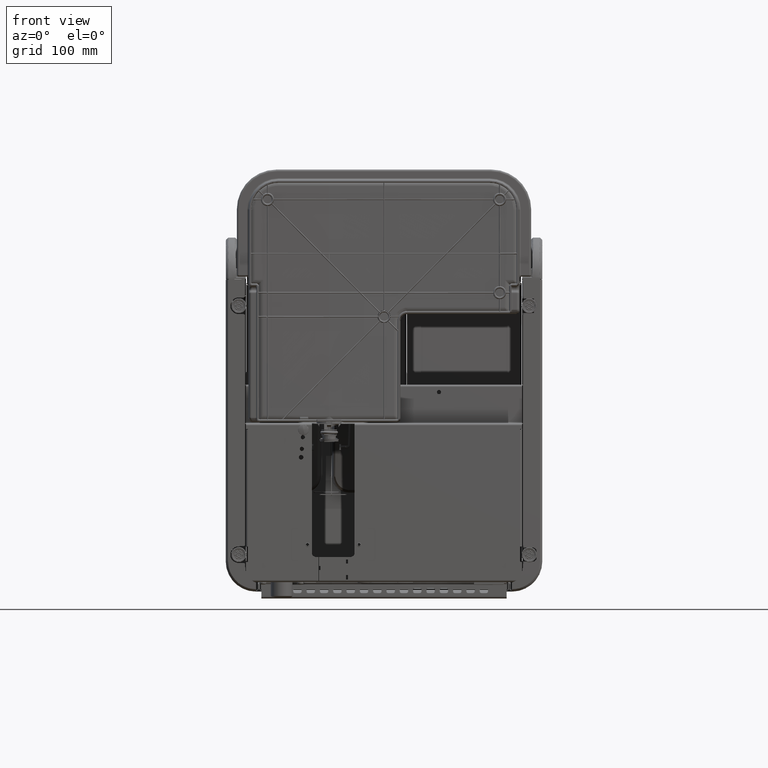
[diagram: clean part render]
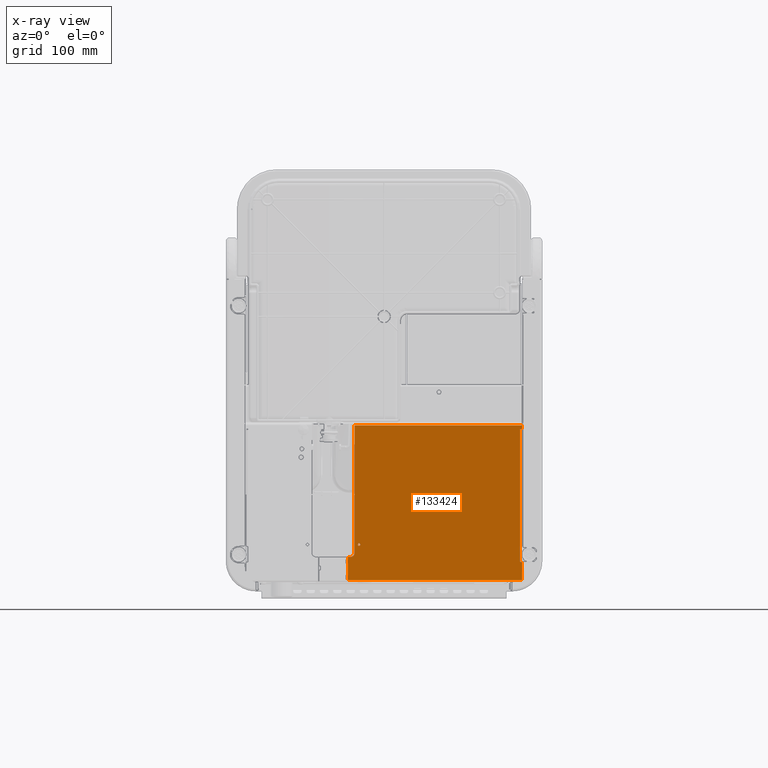
[diagram: x-ray — body ghosted, one internal face saturated and labeled with its STEP entity id]
A machine part, front view, then the same camera in x-ray: the body is ghosted and one INTERNAL B-rep face — a face not visible from any outside direction — is saturated and labeled: STEP entity #133424.
In plain terms, the highlighted planar face has unit normal (0, 1, 0).
Its self-contained STEP definition (entity closure, byte-faithful):
#2092=FACE_BOUND('',#32859,.T.);
#18592=CIRCLE('',#142537,1.);
#18637=CIRCLE('',#142623,5.);
#18685=CIRCLE('',#142686,0.249999999999995);
#18689=CIRCLE('',#142693,0.250000000000004);
#18690=CIRCLE('',#142694,1.);
#18691=CIRCLE('',#142695,1.621);
#26639=FACE_OUTER_BOUND('',#32858,.T.);
#32858=EDGE_LOOP('',(#115791,#115792,#115793,#115794,#115795,#115796,#115797,
#115798,#115799,#115800,#115801,#115802,#115803,#115804,#115805,#115806,
#115807,#115808));
#32859=EDGE_LOOP('',(#115809));
#41378=LINE('',#283409,#51403);
#41488=LINE('',#283732,#51513);
#41600=LINE('',#284009,#51625);
#41613=LINE('',#284055,#51638);
#41623=LINE('',#284076,#51648);
#41624=LINE('',#284077,#51649);
#41625=LINE('',#284079,#51650);
#41626=LINE('',#284080,#51651);
#41627=LINE('',#284083,#51652);
#41628=LINE('',#284085,#51653);
#41629=LINE('',#284088,#51654);
#41630=LINE('',#284090,#51655);
#41631=LINE('',#284091,#51656);
#51403=VECTOR('',#166721,10.);
#51513=VECTOR('',#166995,10.);
#51625=VECTOR('',#167217,10.);
#51638=VECTOR('',#167256,10.);
#51648=VECTOR('',#167274,10.);
#51649=VECTOR('',#167275,10.);
#51650=VECTOR('',#167276,10.);
#51651=VECTOR('',#167277,10.);
#51652=VECTOR('',#167280,10.);
#51653=VECTOR('',#167281,10.);
#51654=VECTOR('',#167284,10.);
#51655=VECTOR('',#167285,10.);
#51656=VECTOR('',#167286,10.);
#64988=VERTEX_POINT('',#283402);
#64989=VERTEX_POINT('',#283404);
#64990=VERTEX_POINT('',#283408);
#65119=VERTEX_POINT('',#283728);
#65121=VERTEX_POINT('',#283731);
#65124=VERTEX_POINT('',#283739);
#65231=VERTEX_POINT('',#284007);
#65245=VERTEX_POINT('',#284041);
#65246=VERTEX_POINT('',#284043);
#65250=VERTEX_POINT('',#284052);
#65251=VERTEX_POINT('',#284054);
#65257=VERTEX_POINT('',#284074);
#65258=VERTEX_POINT('',#284075);
#65259=VERTEX_POINT('',#284078);
#65260=VERTEX_POINT('',#284081);
#65261=VERTEX_POINT('',#284084);
#65262=VERTEX_POINT('',#284087);
#65263=VERTEX_POINT('',#284089);
#65264=VERTEX_POINT('',#284092);
#84998=EDGE_CURVE('',#64988,#64989,#18592,.T.);
#85000=EDGE_CURVE('',#64990,#64989,#41378,.T.);
#85153=EDGE_CURVE('',#65121,#65119,#41488,.T.);
#85158=EDGE_CURVE('',#65124,#65119,#18637,.T.);
#85308=EDGE_CURVE('',#65124,#65231,#41600,.T.);
#85324=EDGE_CURVE('',#65246,#65245,#18685,.T.);
#85329=EDGE_CURVE('',#65251,#65250,#41613,.T.);
#85341=EDGE_CURVE('',#65257,#65258,#41623,.T.);
#85342=EDGE_CURVE('',#65258,#65121,#41624,.T.);
#85343=EDGE_CURVE('',#65231,#65259,#41625,.T.);
#85344=EDGE_CURVE('',#65251,#65259,#41626,.T.);
#85345=EDGE_CURVE('',#65250,#65260,#18689,.T.);
#85346=EDGE_CURVE('',#65260,#65246,#41627,.T.);
#85347=EDGE_CURVE('',#65245,#65261,#41628,.T.);
#85348=EDGE_CURVE('',#64990,#65261,#18690,.T.);
#85349=EDGE_CURVE('',#65262,#64988,#41629,.T.);
#85350=EDGE_CURVE('',#65262,#65263,#41630,.T.);
#85351=EDGE_CURVE('',#65263,#65257,#41631,.T.);
#85352=EDGE_CURVE('',#65264,#65264,#18691,.T.);
#115791=ORIENTED_EDGE('',*,*,#85341,.T.);
#115792=ORIENTED_EDGE('',*,*,#85342,.T.);
#115793=ORIENTED_EDGE('',*,*,#85153,.T.);
#115794=ORIENTED_EDGE('',*,*,#85158,.F.);
#115795=ORIENTED_EDGE('',*,*,#85308,.T.);
#115796=ORIENTED_EDGE('',*,*,#85343,.T.);
#115797=ORIENTED_EDGE('',*,*,#85344,.F.);
#115798=ORIENTED_EDGE('',*,*,#85329,.T.);
#115799=ORIENTED_EDGE('',*,*,#85345,.T.);
#115800=ORIENTED_EDGE('',*,*,#85346,.T.);
#115801=ORIENTED_EDGE('',*,*,#85324,.T.);
#115802=ORIENTED_EDGE('',*,*,#85347,.T.);
#115803=ORIENTED_EDGE('',*,*,#85348,.F.);
#115804=ORIENTED_EDGE('',*,*,#85000,.T.);
#115805=ORIENTED_EDGE('',*,*,#84998,.F.);
#115806=ORIENTED_EDGE('',*,*,#85349,.F.);
#115807=ORIENTED_EDGE('',*,*,#85350,.T.);
#115808=ORIENTED_EDGE('',*,*,#85351,.T.);
#115809=ORIENTED_EDGE('',*,*,#85352,.T.);
#128655=PLANE('',#142692);
#133424=ADVANCED_FACE('',(#26639,#2092),#128655,.T.);
#142537=AXIS2_PLACEMENT_3D('',#283405,#166716,#166717);
#142623=AXIS2_PLACEMENT_3D('',#283741,#167003,#167004);
#142686=AXIS2_PLACEMENT_3D('',#284044,#167247,#167248);
#142692=AXIS2_PLACEMENT_3D('',#284073,#167272,#167273);
#142693=AXIS2_PLACEMENT_3D('',#284082,#167278,#167279);
#142694=AXIS2_PLACEMENT_3D('',#284086,#167282,#167283);
#142695=AXIS2_PLACEMENT_3D('',#284093,#167287,#167288);
#166716=DIRECTION('center_axis',(-3.54033577661921E-15,-1.,-1.16434639707563E-14));
#166717=DIRECTION('ref_axis',(0.707106781186563,-1.07365677655477E-14,0.707106781186533));
#166721=DIRECTION('',(1.,-3.54033577661907E-15,-1.24001115292806E-14));
#166995=DIRECTION('',(1.,-3.54033577661907E-15,-1.18817194555257E-14));
#167003=DIRECTION('center_axis',(3.54033577661921E-15,1.,1.16434639707563E-14));
#167004=DIRECTION('ref_axis',(0.70710678118654,5.72977689489839E-15,-0.707106781186555));
#167217=DIRECTION('',(1.20747714488043E-14,-1.16434639707564E-14,1.));
#167247=DIRECTION('center_axis',(-3.54033577661921E-15,-1.,-1.16434639707563E-14));
#167248=DIRECTION('ref_axis',(1.24001115292806E-14,-1.16434639707564E-14,
1.));
#167256=DIRECTION('',(-1.,3.54033577661907E-15,1.24001115292806E-14));
#167272=DIRECTION('center_axis',(3.54033577661921E-15,1.,1.16434639707563E-14));
#167273=DIRECTION('ref_axis',(-1.,3.54033577661907E-15,1.24001115292806E-14));
#167274=DIRECTION('',(-1.30116396515575E-10,-1.16434639702957E-14,1.));
#167275=DIRECTION('',(1.09624628562196E-14,-1.16434639707564E-14,1.));
#167276=DIRECTION('',(1.,-3.54033577661907E-15,-1.26141304255939E-14));
#167277=DIRECTION('',(1.24001115292806E-14,-1.16434639707564E-14,1.));
#167278=DIRECTION('center_axis',(-3.54033577661921E-15,-1.,-1.16434639707563E-14));
#167279=DIRECTION('ref_axis',(-1.24001115292806E-14,1.16434639707564E-14,
-1.));
#167280=DIRECTION('',(-1.24001115292806E-14,1.16434639707564E-14,-1.));
#167281=DIRECTION('',(-1.24001115292806E-14,1.16434639707564E-14,-1.));
#167282=DIRECTION('center_axis',(3.54033577661921E-15,1.,1.16434639707563E-14));
#167283=DIRECTION('ref_axis',(-0.707106781186563,1.07365677655477E-14,-0.707106781186533));
#167284=DIRECTION('',(1.24001115292806E-14,-1.16434639707564E-14,1.));
#167285=DIRECTION('',(-1.,3.54033577661907E-15,1.25071209774373E-14));
#167286=DIRECTION('',(1.25071209774372E-14,-1.16434639707564E-14,1.));
#167287=DIRECTION('center_axis',(-3.54033577661921E-15,-1.,-1.16434639707563E-14));
#167288=DIRECTION('ref_axis',(1.,-3.54033577661907E-15,-1.24001115292806E-14));
#283402=CARTESIAN_POINT('',(165.999999999999,0.800000000001712,-174.8));
#283404=CARTESIAN_POINT('',(164.999999999999,0.800000000001704,-173.8));
#283405=CARTESIAN_POINT('Origin',(164.999999999999,0.800000000001716,-174.8));
#283408=CARTESIAN_POINT('',(164.249999999999,0.800000000001707,-173.8));
#283409=CARTESIAN_POINT('',(82.999999999999,0.800000000001994,-173.799999999999));
#283728=CARTESIAN_POINT('',(-40.3000000000008,0.800000000002361,-167.799999999998));
#283731=CARTESIAN_POINT('',(-43.500000000001,0.800000000002355,-167.799999999566));
#283732=CARTESIAN_POINT('',(-43.3500000000009,0.800000000002372,-167.799999999998));
#283739=CARTESIAN_POINT('',(-35.3000000000008,0.800000000002285,-162.799999999998));
#283741=CARTESIAN_POINT('Origin',(-40.3000000000008,0.800000000002303,-162.799999999998));
#284007=CARTESIAN_POINT('',(-35.2999999999989,0.8000000000005,-9.49999999999795));
#284009=CARTESIAN_POINT('',(-35.3000000000004,0.800000000001962,-135.099999999998));
#284041=CARTESIAN_POINT('',(163.249999999999,0.800000000001498,-155.55));
#284043=CARTESIAN_POINT('',(163.499999999999,0.800000000001494,-155.3));
#284044=CARTESIAN_POINT('Origin',(163.499999999999,0.800000000001497,-155.55));
#284052=CARTESIAN_POINT('',(163.500000000001,0.799999999999849,-14.0000000000004));
#284054=CARTESIAN_POINT('',(166.000000000001,0.79999999999984,-14.0000000000005));
#284055=CARTESIAN_POINT('',(81.750000000001,0.800000000000138,-13.9999999999994));
#284073=CARTESIAN_POINT('Origin',(-1.17071818038222E-13,0.800000000001457,
-102.399999999998));
#284074=CARTESIAN_POINT('',(-43.5000000000013,0.800000000002702,-193.799999999566));
#284075=CARTESIAN_POINT('',(-43.5000000000012,0.800000000002658,-190.799999999566));
#284076=CARTESIAN_POINT('',(-43.5000000063379,0.80000000000212,-146.100000002477));
#284077=CARTESIAN_POINT('',(-43.5000000000007,0.800000000002125,-146.599999999782));
#284078=CARTESIAN_POINT('',(166.000000000001,0.799999999999787,-9.50000000000049));
#284079=CARTESIAN_POINT('',(83.0000000000011,0.800000000000081,-9.49999999999944));
#284080=CARTESIAN_POINT('',(165.999999999999,0.80000000000198,-197.8));
#284081=CARTESIAN_POINT('',(163.500000000001,0.799999999999854,-14.5000000000005));
#284082=CARTESIAN_POINT('Origin',(163.500000000001,0.799999999999851,-14.2500000000005));
#284083=CARTESIAN_POINT('',(163.5,0.800000000001186,-128.85));
#284084=CARTESIAN_POINT('',(163.249999999999,0.800000000001698,-172.8));
#284085=CARTESIAN_POINT('',(163.249999999999,0.800000000001295,-138.1));
#284086=CARTESIAN_POINT('Origin',(164.249999999999,0.800000000001695,-172.8));
#284087=CARTESIAN_POINT('',(165.999999999999,0.800000000001951,-195.3));
#284088=CARTESIAN_POINT('',(165.999999999999,0.80000000000198,-197.8));
#284089=CARTESIAN_POINT('',(-43.5000000000013,0.800000000002692,-195.299999999998));
#284090=CARTESIAN_POINT('',(-83.0000000000013,0.800000000002832,-195.299999999997));
#284091=CARTESIAN_POINT('',(-43.5000000000007,0.800000000002152,-148.849999999998));
#284092=CARTESIAN_POINT('',(-31.6210000000007,0.80000000000214,-152.899999999998));
#284093=CARTESIAN_POINT('Origin',(-30.0000000000007,0.800000000002134,-152.899999999998));